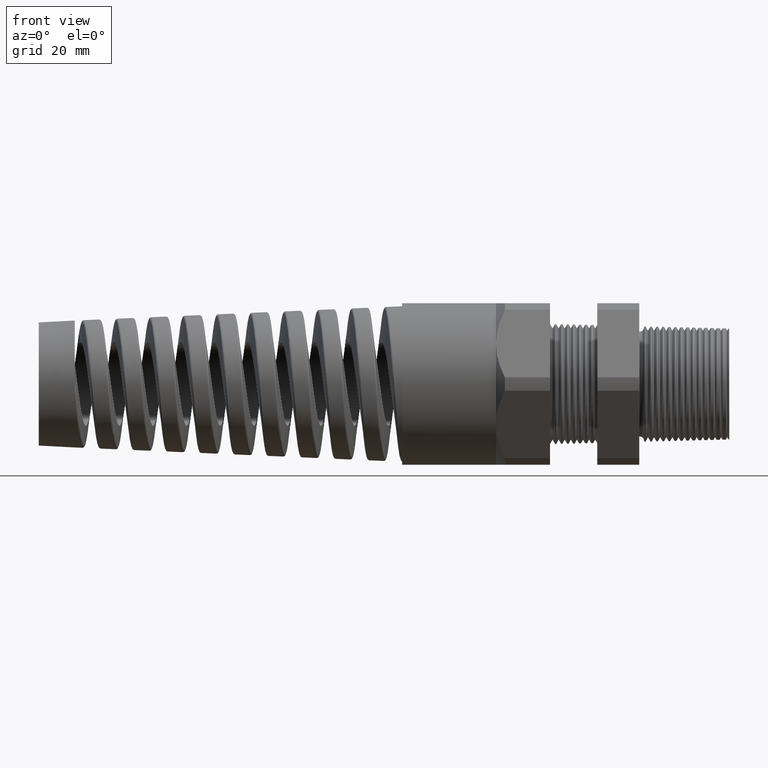
[diagram: clean part render]
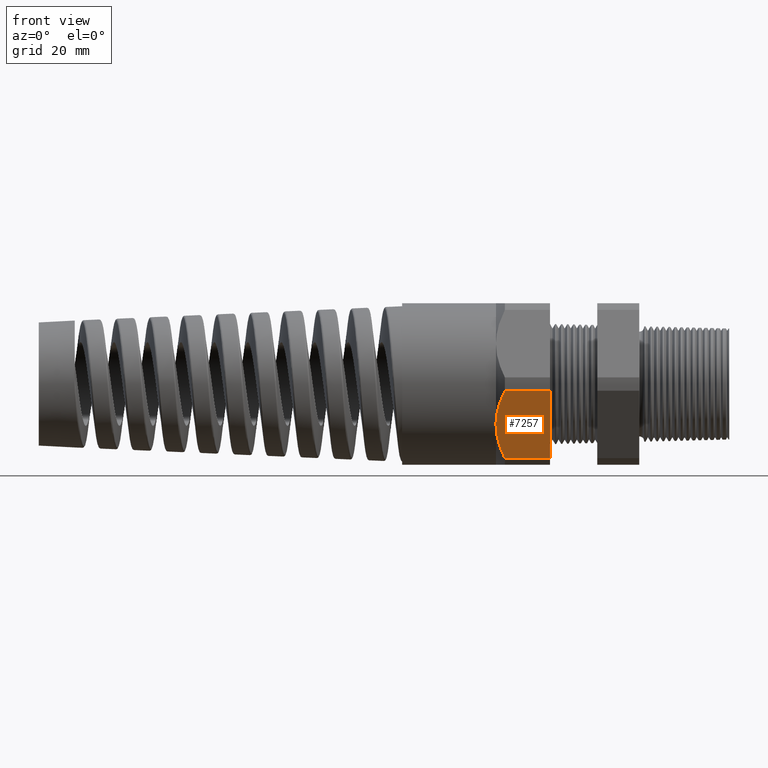
[diagram: same view with one face highlighted and labeled with its STEP entity id]
A machine part, front view. The second image highlights one B-rep face of the part: STEP entity #7257.
In plain terms, the highlighted planar face has unit normal (0, -0.866, -0.5).
Its self-contained STEP definition (entity closure, byte-faithful):
#7257 = ADVANCED_FACE ( 'NONE', ( #13107 ), #13106, .T. ) ;
#7258 = EDGE_LOOP ( 'NONE', ( #7259, #7263, #7266, #7268, #7269 ) ) ;
#7259 = ORIENTED_EDGE ( 'NONE', *, *, #7260, .T. ) ;
#7260 = EDGE_CURVE ( 'NONE', #7261, #7262, #13161, .T. ) ;
#7261 = VERTEX_POINT ( 'NONE', #13156 ) ;
#7262 = VERTEX_POINT ( 'NONE', #13155 ) ;
#7263 = ORIENTED_EDGE ( 'NONE', *, *, #7264, .T. ) ;
#7264 = EDGE_CURVE ( 'NONE', #7262, #7265, #13154, .T. ) ;
#7265 = VERTEX_POINT ( 'NONE', #13153 ) ;
#7266 = ORIENTED_EDGE ( 'NONE', *, *, #7267, .T. ) ;
#7267 = EDGE_CURVE ( 'NONE', #7265, #7278, #13142, .T. ) ;
#7268 = ORIENTED_EDGE ( 'NONE', *, *, #7276, .F. ) ;
#7269 = ORIENTED_EDGE ( 'NONE', *, *, #7323, .F. ) ;
#7276 = EDGE_CURVE ( 'NONE', #7277, #7278, #13179, .T. ) ;
#7277 = VERTEX_POINT ( 'NONE', #13175 ) ;
#7278 = VERTEX_POINT ( 'NONE', #13174 ) ;
#7323 = EDGE_CURVE ( 'NONE', #7261, #7277, #13258, .T. ) ;
#13103 = CARTESIAN_POINT ( 'NONE',  ( 0.2800000000000000300, -0.3313250556190259800, -0.4861281698472630400 ) ) ;
#13104 = AXIS2_PLACEMENT_3D ( 'NONE', #13103, #13105, #13160 ) ;
#13105 = DIRECTION ( 'NONE',  ( 0.0000000000000000000, -0.8660254037844386000, -0.5000000000000001100 ) ) ;
#13106 = PLANE ( 'NONE',  #13104 ) ;
#13107 = FACE_OUTER_BOUND ( 'NONE', #7258, .T. ) ;
#13136 = CARTESIAN_POINT ( 'NONE',  ( -1.224680733166497500, -0.3726775389205835800, -0.4145035677498214400 ) ) ;
#13137 = CARTESIAN_POINT ( 'NONE',  ( -1.244974150190778500, -0.4152540171503035200, -0.3407589442485964800 ) ) ;
#13138 = CARTESIAN_POINT ( 'NONE',  ( -1.250551181102362200, -0.4369033769668390100, -0.3032611530950170000 ) ) ;
#13139 = CARTESIAN_POINT ( 'NONE',  ( -1.250551181102362200, -0.4589934640057526900, -0.2650000000000002400 ) ) ;
#13142 = B_SPLINE_CURVE_WITH_KNOTS ( 'NONE', 3,
 ( #13139, #13138, #13137, #13136, #13189, #13188 ),
 .UNSPECIFIED., .F., .F.,
 ( 4, 2, 4 ),
 ( 0.006656663749349999700, 0.009982589261723351400, 0.01330851477409670600 ),
 .UNSPECIFIED. ) ;
#13143 = CARTESIAN_POINT ( 'NONE',  ( -1.250551181102362200, -0.4589934640057526900, -0.2650000000000002400 ) ) ;
#13144 = CARTESIAN_POINT ( 'NONE',  ( -1.250551181102362200, -0.4645197752363700000, -0.2554281481701323200 ) ) ;
#13145 = CARTESIAN_POINT ( 'NONE',  ( -1.250201454617269300, -0.4700966316160714600, -0.2457687495739747900 ) ) ;
#13146 = CARTESIAN_POINT ( 'NONE',  ( -1.248812408746605500, -0.4811768528785424500, -0.2265772433882700400 ) ) ;
#13147 = CARTESIAN_POINT ( 'NONE',  ( -1.247777632106220200, -0.4866745645865461800, -0.2170549273846412200 ) ) ;
#13148 = CARTESIAN_POINT ( 'NONE',  ( -1.243714151058408200, -0.5030481801450604800, -0.1886949933336941900 ) ) ;
#13149 = CARTESIAN_POINT ( 'NONE',  ( -1.239725996593368900, -0.5138045271803674000, -0.1700644537646998100 ) ) ;
#13150 = CARTESIAN_POINT ( 'NONE',  ( -1.224453382401947500, -0.5456613404998793500, -0.1148868345280678600 ) ) ;
#13151 = CARTESIAN_POINT ( 'NONE',  ( -1.209881065959919700, -0.5663521078376415600, -0.07904937425147715000 ) ) ;
#13152 = CARTESIAN_POINT ( 'NONE',  ( -1.192251181102362400, -0.5866618723924791300, -0.04387183015273716400 ) ) ;
#13153 = CARTESIAN_POINT ( 'NONE',  ( -1.250551181102362200, -0.4589934640057526900, -0.2650000000000002400 ) ) ;
#13154 = B_SPLINE_CURVE_WITH_KNOTS ( 'NONE', 3,
 ( #13152, #13151, #13150, #13149, #13148, #13147, #13146, #13145, #13144, #13143 ),
 .UNSPECIFIED., .F., .F.,
 ( 4, 2, 2, 2, 4 ),
 ( 2.483250567256025300E-007, 0.003328456037203362400, 0.004992559893276681500, 0.005824611821313340600, 0.006656663749349999700 ),
 .UNSPECIFIED. ) ;
#13155 = CARTESIAN_POINT ( 'NONE',  ( -1.192251181102362400, -0.5866618723924791300, -0.04387183015273716400 ) ) ;
#13156 = CARTESIAN_POINT ( 'NONE',  ( -0.8962204724409449400, -0.5866618723924791300, -0.04387183015273716400 ) ) ;
#13157 = DIRECTION ( 'NONE',  ( -1.000000000000000000, -0.0000000000000000000, -0.0000000000000000000 ) ) ;
#13158 = VECTOR ( 'NONE', #13157, 39.37007874015748100 ) ;
#13159 = CARTESIAN_POINT ( 'NONE',  ( 0.2800000000000000300, -0.5866618723924791300, -0.04387183015273716400 ) ) ;
#13160 = DIRECTION ( 'NONE',  ( 0.0000000000000000000, 0.5000000000000001100, -0.8660254037844386000 ) ) ;
#13161 = LINE ( 'NONE', #13159, #13158 ) ;
#13174 = CARTESIAN_POINT ( 'NONE',  ( -1.192251181102362400, -0.3313250556190259800, -0.4861281698472632000 ) ) ;
#13175 = CARTESIAN_POINT ( 'NONE',  ( -0.8962204724409449400, -0.3313250556190258700, -0.4861281698472630400 ) ) ;
#13176 = DIRECTION ( 'NONE',  ( -1.000000000000000000, -0.0000000000000000000, -0.0000000000000000000 ) ) ;
#13177 = VECTOR ( 'NONE', #13176, 39.37007874015748100 ) ;
#13178 = CARTESIAN_POINT ( 'NONE',  ( 0.2800000000000000300, -0.3313250556190258700, -0.4861281698472630400 ) ) ;
#13179 = LINE ( 'NONE', #13178, #13177 ) ;
#13188 = CARTESIAN_POINT ( 'NONE',  ( -1.192251181102362400, -0.3313250556190259800, -0.4861281698472632000 ) ) ;
#13189 = CARTESIAN_POINT ( 'NONE',  ( -1.209902898097438200, -0.3516599709661860600, -0.4509070632983699400 ) ) ;
#13255 = DIRECTION ( 'NONE',  ( 0.0000000000000000000, 0.5000000000000001100, -0.8660254037844386000 ) ) ;
#13256 = VECTOR ( 'NONE', #13255, 39.37007874015748100 ) ;
#13257 = CARTESIAN_POINT ( 'NONE',  ( -0.8962204724409449400, -0.3602434640057525200, -0.4360400172474268000 ) ) ;
#13258 = LINE ( 'NONE', #13257, #13256 ) ;